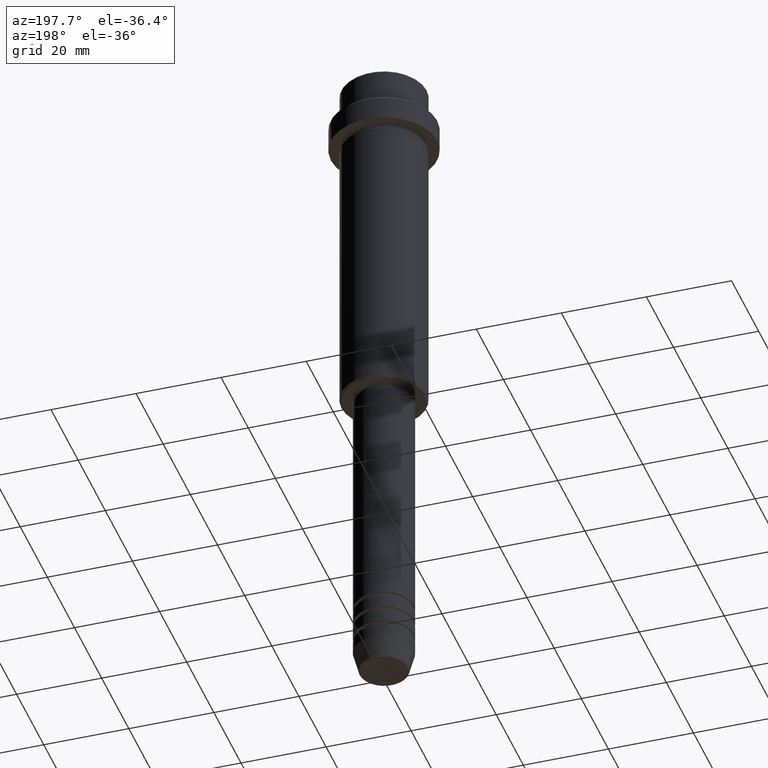
[diagram: clean part render]
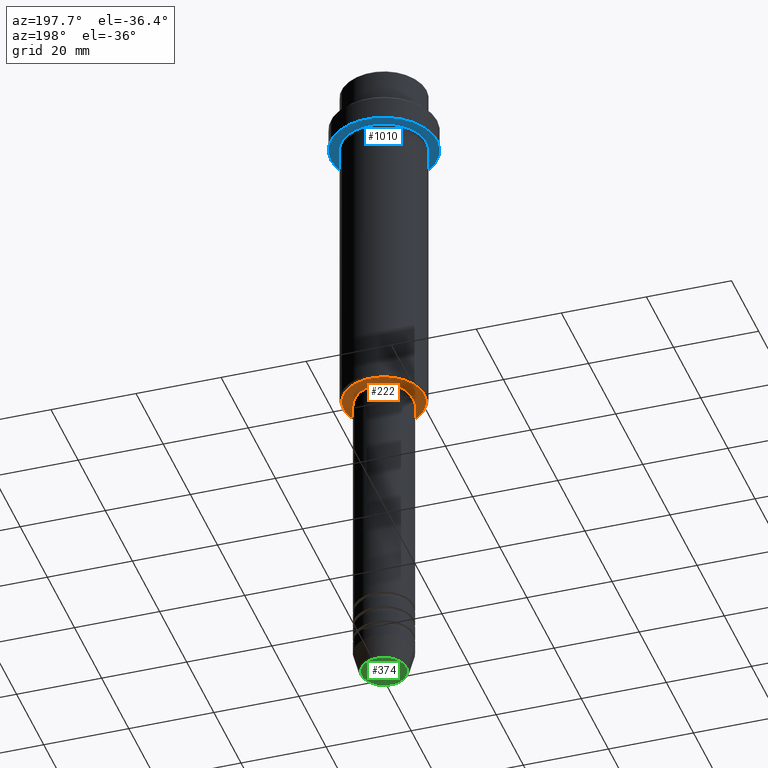
[diagram: same view with three faces highlighted in distinct colors, each labeled with its STEP entity id]
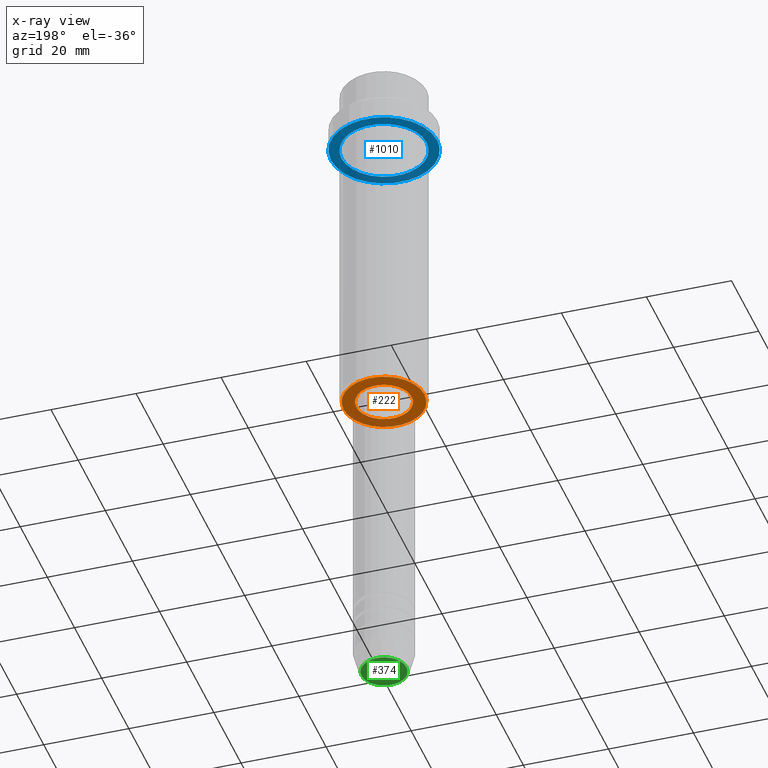
[diagram: x-ray of the same camera — body ghosted, the three highlighted faces saturated]
A machine part, auxiliary view with three faces highlighted in distinct colors.
The next image is the same camera in x-ray (body ghosted, the three faces saturated) — at least one of them is partly hidden behind the body in this view.
Their STEP definitions:

[orange] entity #222 — the highlighted planar face has unit normal (0, 0, -1).
#4 = VERTEX_POINT ( 'NONE', #1129 ) ;
#40 = CARTESIAN_POINT ( 'NONE',  ( -6.499999999999994671, 7.960204194457788574E-16, -84.99999999999997158 ) ) ;
#63 = EDGE_CURVE ( 'NONE', #1365, #823, #1014, .T. ) ;
#99 = DIRECTION ( 'NONE',  ( 1.000000000000000000, 0.000000000000000000, 0.000000000000000000 ) ) ;
#106 = DIRECTION ( 'NONE',  ( 0.000000000000000000, 0.000000000000000000, -1.000000000000000000 ) ) ;
#125 = DIRECTION ( 'NONE',  ( -0.000000000000000000, -0.000000000000000000, 1.000000000000000000 ) ) ;
#147 = FACE_BOUND ( 'NONE', #1383, .T. ) ;
#152 = CIRCLE ( 'NONE', #584, 6.499999999999994671 ) ;
#222 = ADVANCED_FACE ( 'NONE', ( #557, #147 ), #336, .T. ) ;
#223 = CARTESIAN_POINT ( 'NONE',  ( 0.000000000000000000, 0.000000000000000000, -84.99999999999997158 ) ) ;
#242 = DIRECTION ( 'NONE',  ( 1.000000000000000000, 0.000000000000000000, 0.000000000000000000 ) ) ;
#336 = PLANE ( 'NONE',  #883 ) ;
#355 = CARTESIAN_POINT ( 'NONE',  ( 9.500000000000008882, 0.000000000000000000, -84.99999999999997158 ) ) ;
#358 = CARTESIAN_POINT ( 'NONE',  ( 0.000000000000000000, 0.000000000000000000, -84.99999999999997158 ) ) ;
#367 = DIRECTION ( 'NONE',  ( 0.000000000000000000, 0.000000000000000000, -1.000000000000000000 ) ) ;
#383 = EDGE_CURVE ( 'NONE', #823, #1365, #152, .T. ) ;
#398 = EDGE_CURVE ( 'NONE', #604, #4, #457, .T. ) ;
#443 = DIRECTION ( 'NONE',  ( -1.000000000000000000, 0.000000000000000000, 0.000000000000000000 ) ) ;
#457 = CIRCLE ( 'NONE', #1374, 9.500000000000008882 ) ;
#478 = AXIS2_PLACEMENT_3D ( 'NONE', #358, #125, #242 ) ;
#557 = FACE_OUTER_BOUND ( 'NONE', #867, .T. ) ;
#575 = DIRECTION ( 'NONE',  ( -1.000000000000000000, 0.000000000000000000, 0.000000000000000000 ) ) ;
#584 = AXIS2_PLACEMENT_3D ( 'NONE', #1088, #1080, #99 ) ;
#590 = CIRCLE ( 'NONE', #1248, 9.500000000000008882 ) ;
#604 = VERTEX_POINT ( 'NONE', #355 ) ;
#648 = ORIENTED_EDGE ( 'NONE', *, *, #398, .T. ) ;
#653 = CARTESIAN_POINT ( 'NONE',  ( 0.000000000000000000, 0.000000000000000000, -84.99999999999997158 ) ) ;
#823 = VERTEX_POINT ( 'NONE', #872 ) ;
#867 = EDGE_LOOP ( 'NONE', ( #648, #1051 ) ) ;
#872 = CARTESIAN_POINT ( 'NONE',  ( 6.499999999999994671, 0.000000000000000000, -84.99999999999997158 ) ) ;
#883 = AXIS2_PLACEMENT_3D ( 'NONE', #1335, #367, #1126 ) ;
#886 = ORIENTED_EDGE ( 'NONE', *, *, #63, .T. ) ;
#982 = DIRECTION ( 'NONE',  ( 0.000000000000000000, 0.000000000000000000, -1.000000000000000000 ) ) ;
#1014 = CIRCLE ( 'NONE', #478, 6.499999999999994671 ) ;
#1051 = ORIENTED_EDGE ( 'NONE', *, *, #1233, .T. ) ;
#1080 = DIRECTION ( 'NONE',  ( -0.000000000000000000, -0.000000000000000000, 1.000000000000000000 ) ) ;
#1088 = CARTESIAN_POINT ( 'NONE',  ( 0.000000000000000000, 0.000000000000000000, -84.99999999999997158 ) ) ;
#1126 = DIRECTION ( 'NONE',  ( -1.000000000000000000, 0.000000000000000000, -0.000000000000000000 ) ) ;
#1129 = CARTESIAN_POINT ( 'NONE',  ( -9.500000000000008882, 1.194030629168669864E-15, -84.99999999999997158 ) ) ;
#1233 = EDGE_CURVE ( 'NONE', #4, #604, #590, .T. ) ;
#1248 = AXIS2_PLACEMENT_3D ( 'NONE', #653, #106, #575 ) ;
#1265 = ORIENTED_EDGE ( 'NONE', *, *, #383, .T. ) ;
#1335 = CARTESIAN_POINT ( 'NONE',  ( 0.000000000000000000, 10.00000000000000000, -84.99999999999997158 ) ) ;
#1365 = VERTEX_POINT ( 'NONE', #40 ) ;
#1374 = AXIS2_PLACEMENT_3D ( 'NONE', #223, #982, #443 ) ;
#1383 = EDGE_LOOP ( 'NONE', ( #1265, #886 ) ) ;

[blue] entity #1010 — the highlighted planar face has unit normal (0, 0, -1).
#2 = DIRECTION ( 'NONE',  ( 1.000000000000000000, 0.000000000000000000, 0.000000000000000000 ) ) ;
#30 = DIRECTION ( 'NONE',  ( -1.000000000000000000, 0.000000000000000000, 0.000000000000000000 ) ) ;
#44 = EDGE_CURVE ( 'NONE', #930, #965, #172, .T. ) ;
#101 = CARTESIAN_POINT ( 'NONE',  ( 0.000000000000000000, 0.000000000000000000, -15.00000000000000178 ) ) ;
#112 = DIRECTION ( 'NONE',  ( -0.000000000000000000, -0.000000000000000000, 1.000000000000000000 ) ) ;
#129 = CARTESIAN_POINT ( 'NONE',  ( 0.000000000000000000, 0.000000000000000000, -15.00000000000000000 ) ) ;
#139 = DIRECTION ( 'NONE',  ( -0.000000000000000000, -0.000000000000000000, 1.000000000000000000 ) ) ;
#155 = CARTESIAN_POINT ( 'NONE',  ( 12.50000000000000000, 0.000000000000000000, -15.00000000000000178 ) ) ;
#172 = CIRCLE ( 'NONE', #429, 9.999999999999994671 ) ;
#302 = FACE_OUTER_BOUND ( 'NONE', #696, .T. ) ;
#354 = DIRECTION ( 'NONE',  ( -0.000000000000000000, -0.000000000000000000, 1.000000000000000000 ) ) ;
#389 = AXIS2_PLACEMENT_3D ( 'NONE', #472, #354, #612 ) ;
#412 = CIRCLE ( 'NONE', #835, 12.50000000000000000 ) ;
#415 = EDGE_LOOP ( 'NONE', ( #1301, #1196 ) ) ;
#425 = DIRECTION ( 'NONE',  ( 0.000000000000000000, 0.000000000000000000, -1.000000000000000000 ) ) ;
#429 = AXIS2_PLACEMENT_3D ( 'NONE', #129, #469, #30 ) ;
#469 = DIRECTION ( 'NONE',  ( -0.000000000000000000, -0.000000000000000000, 1.000000000000000000 ) ) ;
#472 = CARTESIAN_POINT ( 'NONE',  ( 0.000000000000000000, 0.000000000000000000, -15.00000000000000000 ) ) ;
#558 = ORIENTED_EDGE ( 'NONE', *, *, #814, .F. ) ;
#583 = CARTESIAN_POINT ( 'NONE',  ( -12.50000000000000000, 1.530808498934191521E-15, -15.00000000000000178 ) ) ;
#612 = DIRECTION ( 'NONE',  ( -1.000000000000000000, 0.000000000000000000, 0.000000000000000000 ) ) ;
#649 = EDGE_CURVE ( 'NONE', #965, #930, #999, .T. ) ;
#663 = DIRECTION ( 'NONE',  ( 1.000000000000000000, 0.000000000000000000, 0.000000000000000000 ) ) ;
#696 = EDGE_LOOP ( 'NONE', ( #1094, #558 ) ) ;
#814 = EDGE_CURVE ( 'NONE', #1414, #1373, #906, .T. ) ;
#835 = AXIS2_PLACEMENT_3D ( 'NONE', #1104, #139, #663 ) ;
#906 = CIRCLE ( 'NONE', #1264, 12.50000000000000000 ) ;
#930 = VERTEX_POINT ( 'NONE', #1127 ) ;
#941 = PLANE ( 'NONE',  #1037 ) ;
#965 = VERTEX_POINT ( 'NONE', #1344 ) ;
#999 = CIRCLE ( 'NONE', #389, 9.999999999999994671 ) ;
#1010 = ADVANCED_FACE ( 'NONE', ( #1386, #302 ), #941, .T. ) ;
#1037 = AXIS2_PLACEMENT_3D ( 'NONE', #1370, #425, #1067 ) ;
#1067 = DIRECTION ( 'NONE',  ( -1.000000000000000000, 0.000000000000000000, -0.000000000000000000 ) ) ;
#1094 = ORIENTED_EDGE ( 'NONE', *, *, #1200, .F. ) ;
#1104 = CARTESIAN_POINT ( 'NONE',  ( 0.000000000000000000, 0.000000000000000000, -15.00000000000000178 ) ) ;
#1127 = CARTESIAN_POINT ( 'NONE',  ( -9.999999999999994671, 0.000000000000000000, -15.00000000000000000 ) ) ;
#1196 = ORIENTED_EDGE ( 'NONE', *, *, #649, .T. ) ;
#1200 = EDGE_CURVE ( 'NONE', #1373, #1414, #412, .T. ) ;
#1264 = AXIS2_PLACEMENT_3D ( 'NONE', #101, #112, #2 ) ;
#1301 = ORIENTED_EDGE ( 'NONE', *, *, #44, .T. ) ;
#1344 = CARTESIAN_POINT ( 'NONE',  ( 9.999999999999994671, 1.224646799147352665E-15, -15.00000000000000000 ) ) ;
#1370 = CARTESIAN_POINT ( 'NONE',  ( 0.000000000000000000, 12.50000000000000000, -15.00000000000000000 ) ) ;
#1373 = VERTEX_POINT ( 'NONE', #155 ) ;
#1386 = FACE_BOUND ( 'NONE', #415, .T. ) ;
#1414 = VERTEX_POINT ( 'NONE', #583 ) ;

[green] entity #374 — the highlighted planar face has unit normal (0, -0, 1).
#1 = CARTESIAN_POINT ( 'NONE',  ( -5.276590543854905668, 6.757689212787771832E-16, -159.9999999999999716 ) ) ;
#11 = DIRECTION ( 'NONE',  ( 1.000000000000000000, 0.000000000000000000, 0.000000000000000000 ) ) ;
#33 = VERTEX_POINT ( 'NONE', #267 ) ;
#78 = CIRCLE ( 'NONE', #1220, 5.276590543854905668 ) ;
#199 = EDGE_LOOP ( 'NONE', ( #668, #1351 ) ) ;
#267 = CARTESIAN_POINT ( 'NONE',  ( 5.276590543854905668, 0.000000000000000000, -159.9999999999999716 ) ) ;
#293 = CARTESIAN_POINT ( 'NONE',  ( 0.000000000000000000, 0.000000000000000000, -159.9999999999999716 ) ) ;
#314 = EDGE_CURVE ( 'NONE', #33, #402, #78, .T. ) ;
#374 = ADVANCED_FACE ( 'NONE', ( #749 ), #762, .F. ) ;
#402 = VERTEX_POINT ( 'NONE', #1 ) ;
#519 = DIRECTION ( 'NONE',  ( 1.000000000000000000, 0.000000000000000000, 0.000000000000000000 ) ) ;
#601 = DIRECTION ( 'NONE',  ( 0.000000000000000000, 0.000000000000000000, -1.000000000000000000 ) ) ;
#650 = CARTESIAN_POINT ( 'NONE',  ( 0.000000000000000000, 0.000000000000000000, -159.9999999999999716 ) ) ;
#656 = EDGE_CURVE ( 'NONE', #402, #33, #931, .T. ) ;
#668 = ORIENTED_EDGE ( 'NONE', *, *, #314, .T. ) ;
#749 = FACE_OUTER_BOUND ( 'NONE', #199, .T. ) ;
#762 = PLANE ( 'NONE',  #1155 ) ;
#931 = CIRCLE ( 'NONE', #1245, 5.276590543854905668 ) ;
#1155 = AXIS2_PLACEMENT_3D ( 'NONE', #650, #1297, #11 ) ;
#1174 = DIRECTION ( 'NONE',  ( 1.000000000000000000, 0.000000000000000000, 0.000000000000000000 ) ) ;
#1184 = DIRECTION ( 'NONE',  ( 0.000000000000000000, 0.000000000000000000, -1.000000000000000000 ) ) ;
#1220 = AXIS2_PLACEMENT_3D ( 'NONE', #1388, #1184, #1174 ) ;
#1245 = AXIS2_PLACEMENT_3D ( 'NONE', #293, #601, #519 ) ;
#1297 = DIRECTION ( 'NONE',  ( 0.000000000000000000, -0.000000000000000000, 1.000000000000000000 ) ) ;
#1351 = ORIENTED_EDGE ( 'NONE', *, *, #656, .T. ) ;
#1388 = CARTESIAN_POINT ( 'NONE',  ( 0.000000000000000000, 0.000000000000000000, -159.9999999999999716 ) ) ;